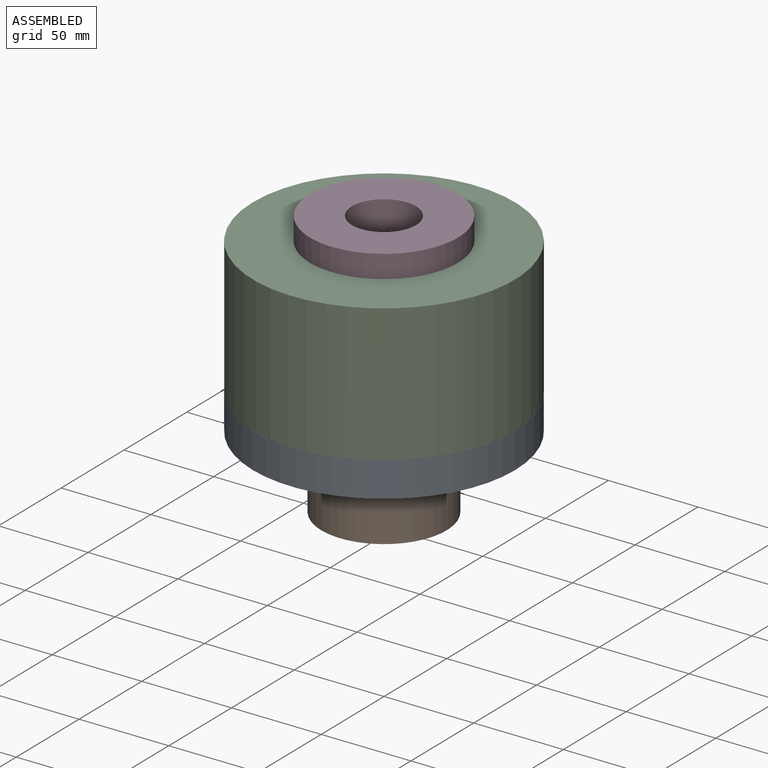
[diagram: assembled view]
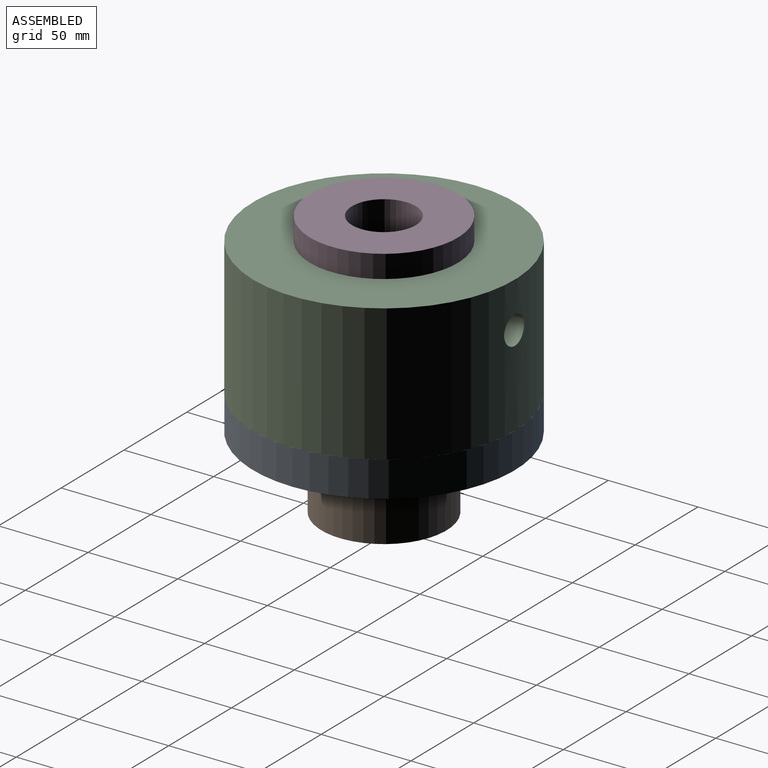
[diagram: assembled view, second angle]
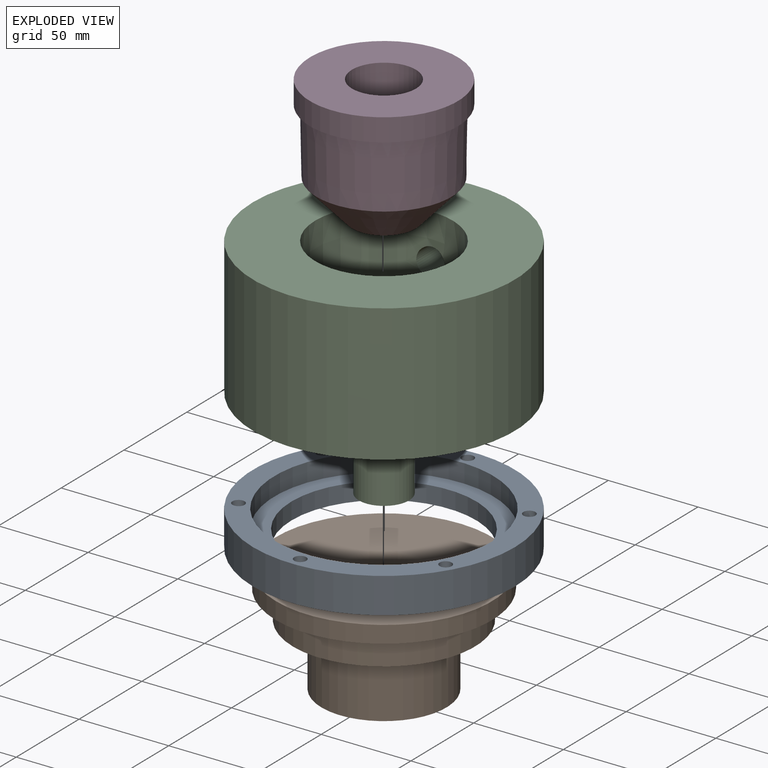
[diagram: exploded view]
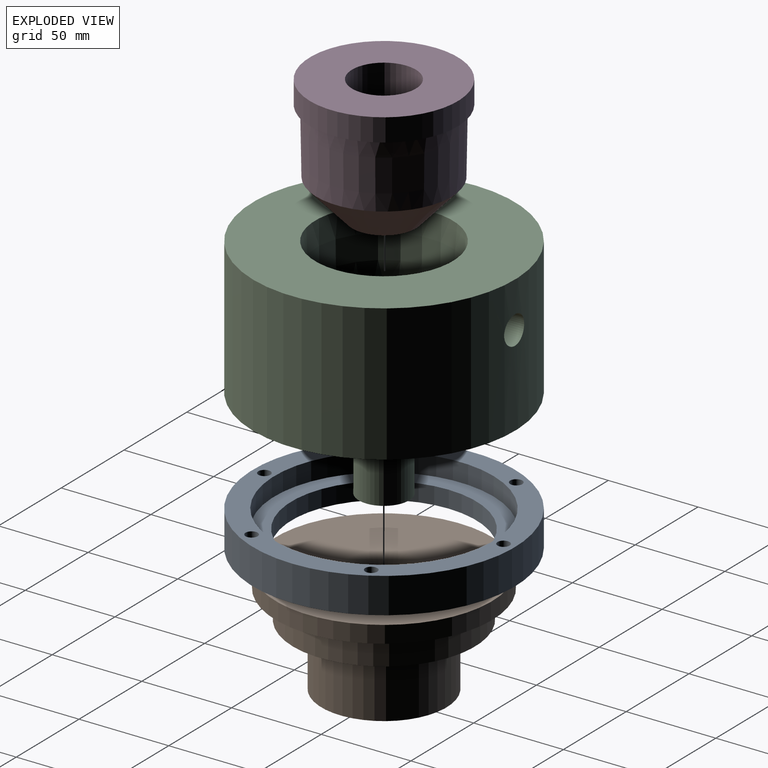
[diagram: exploded view, second angle]
ASSEMBLY  parts=4 mates=3
PART A: 24 faces, bbox 146.1x146.1x19.8 mm
  f0: plane 146.05x146.05mm, normal (0,0,1), area 4814.7mm2, adj f1,f5,f6,f9,f12,f15,f18,f21
  f1: cylinder r=61.09mm len=122.17mm, axis (0,0,1), area 3948.4mm2, adj f0,f2
  f2: plane 122.17x122.17mm, normal (0,0,1), area 3370.9mm2, adj f1,f3
  f3: cylinder r=51.56mm len=103.12mm, axis (0,0,1), area 3085.8mm2, adj f2,f4
  f4: plane 146.05x146.05mm, normal (0,0,-1), area 7818.7mm2, adj f3,f5,f8,f11,f14,f17,f20,f23
  f5: cylinder r=73.03mm len=146.05mm, axis (0,0,1), area 9090.3mm2, adj f0,f4
  f6: cylinder r=3.38mm len=13.46mm, axis (0,0,-1), area 285.7mm2, adj f0,f7
  f7: plane 11.11x11.11mm, normal (0,0,-1), area 61.1mm2, adj f6,f8
  f8: cylinder r=5.56mm len=11.11mm, axis (0,0,-1), area 221.7mm2, adj f4,f7
  f9: cylinder r=3.38mm len=13.46mm, axis (0,0,-1), area 285.7mm2, adj f0,f10
  f10: plane 11.11x11.11mm, normal (0,0,-1), area 61.1mm2, adj f9,f11
  f11: cylinder r=5.56mm len=11.11mm, axis (0,0,-1), area 221.7mm2, adj f4,f10
  f12: cylinder r=3.38mm len=13.46mm, axis (0,0,-1), area 285.7mm2, adj f0,f13
  f13: plane 11.11x11.11mm, normal (0,0,-1), area 61.1mm2, adj f12,f14
  f14: cylinder r=5.56mm len=11.11mm, axis (0,0,-1), area 221.7mm2, adj f4,f13
  f15: cylinder r=3.38mm len=13.46mm, axis (0,0,-1), area 285.7mm2, adj f0,f16
  f16: plane 11.11x11.11mm, normal (0,0,-1), area 61.1mm2, adj f15,f17
  f17: cylinder r=5.56mm len=11.11mm, axis (0,0,-1), area 221.7mm2, adj f4,f16
  f18: cylinder r=3.38mm len=13.46mm, axis (0,0,-1), area 285.7mm2, adj f0,f19
  f19: plane 11.11x11.11mm, normal (0,0,-1), area 61.1mm2, adj f18,f20
  f20: cylinder r=5.56mm len=11.11mm, axis (0,0,-1), area 221.7mm2, adj f4,f19
  f21: cylinder r=3.38mm len=13.46mm, axis (0,0,-1), area 285.7mm2, adj f0,f22
  f22: plane 11.11x11.11mm, normal (0,0,-1), area 61.1mm2, adj f21,f23
  f23: cylinder r=5.56mm len=11.11mm, axis (0,0,-1), area 221.7mm2, adj f4,f22
PART B: 27 faces, bbox 120.7x120.7x60.3 mm
  f0: cylinder r=14.1mm len=44.45mm, axis (0,0,-1), area 3938mm2, adj f1,f12
  f1: cone r=14.1mm half-angle=60deg, axis (0,0,-1), area 105mm2, adj f0,f26
  f2: cylinder r=16.68mm len=33.36mm, axis (0,0,-1), area 317.3mm2, adj f3,f26
  f3: plane 63.5x63.5mm, normal (0,0,-1), area 2170.1mm2, adj f2,f4,f14,f16,f18,f20,f22,f24
  f4: cylinder r=31.75mm len=63.5mm, axis (0,0,-1), area 633.4mm2, adj f3,f5
  f5: plane 69.85x69.85mm, normal (0,0,-1), area 665.1mm2, adj f4,f6
  f6: cylinder r=34.92mm len=69.85mm, axis (0,0,-1), area 6549.2mm2, adj f5,f13
  f7: plane 101.6x101.6mm, normal (0,0,-1), area 3079.5mm2, adj f8,f13
  f8: cylinder r=50.8mm len=101.6mm, axis (0,0,-1), area 5067.1mm2, adj f7,f9
  f9: plane 120.65x120.65mm, normal (0,0,-1), area 3325.3mm2, adj f8,f10
  f10: cylinder r=60.32mm len=120.65mm, axis (0,0,-1), area 3610.3mm2, adj f9,f11
  f11: plane 120.65x120.65mm, normal (0,0,1), area 10118.7mm2, adj f10,f12
  f12: torus R=20.45mm, axis (0,0,1), area 1028.3mm2, adj f0,f11
  f13: torus R=40mm, axis (0,0,-1), area 1843.6mm2, adj f6,f7
  f14: cylinder r=2.55mm len=16.51mm, axis (0,0,-1), area 264.8mm2, adj f3,f15
  f15: cone r=0mm half-angle=59deg, axis (0,0,-1), area 23.9mm2, adj f14
  f16: cylinder r=2.55mm len=16.51mm, axis (0,0,-1), area 264.8mm2, adj f3,f17
  f17: cone r=0mm half-angle=59deg, axis (0,0,-1), area 23.9mm2, adj f16
  f18: cylinder r=2.55mm len=16.51mm, axis (0,0,-1), area 264.8mm2, adj f3,f19
  f19: cone r=0mm half-angle=59deg, axis (0,0,-1), area 23.9mm2, adj f18
  f20: cylinder r=2.55mm len=16.51mm, axis (0,0,-1), area 264.8mm2, adj f3,f21
  f21: cone r=0mm half-angle=59deg, axis (0,0,-1), area 23.9mm2, adj f20
  f22: cylinder r=2.55mm len=16.51mm, axis (0,0,-1), area 264.8mm2, adj f3,f23
  f23: cone r=0mm half-angle=59deg, axis (0,0,-1), area 23.9mm2, adj f22
  f24: cylinder r=2.55mm len=16.51mm, axis (0,0,-1), area 264.8mm2, adj f3,f25
  f25: cone r=0mm half-angle=59deg, axis (0,0,-1), area 23.9mm2, adj f24
  f26: torus R=13.5mm, axis (0,0,-1), area 337mm2, adj f1,f2
PART C: 29 faces, bbox 146.1x146.1x127 mm
  f0: plane 146.05x146.05mm, normal (0,0,-1), area 15322.9mm2, adj f1,f12,f17,f19,f21,f23,f25,f27
  f1: cylinder r=73.03mm len=146.05mm, axis (0,0,-1), area 34764.9mm2, adj f0,f2,f16
  f2: plane 146.05x146.05mm, normal (0,0,1), area 12139.4mm2, adj f1,f3
  f3: cone r=37.56mm half-angle=1deg, axis (0,0,1), area 9543mm2, adj f2,f13,f16
  f4: cone r=9.53mm half-angle=45deg, axis (0,0,1), area 5102.4mm2, adj f13,f14
  f5: cylinder r=9.53mm len=41.82mm, axis (0,0,-1), area 2502.9mm2, adj f14,f15
  f6: cone r=9.53mm half-angle=25deg, axis (0,0,-1), area 706mm2, adj f7,f15
  f7: cylinder r=14.05mm len=44.45mm, axis (0,0,-1), area 3923.8mm2, adj f6,f8
  f8: torus R=14.05mm, axis (0,0,-1), area 102mm2, adj f7,f9
  f9: cylinder r=13.29mm len=26.58mm, axis (0,0,-1), area 132.5mm2, adj f8,f10
  f10: torus R=18.05mm, axis (0,0,-1), area 705.9mm2, adj f9,f11
  f11: plane 39.28x39.28mm, normal (0,0,-1), area 188mm2, adj f10,f12
  f12: torus R=19.64mm, axis (0,0,-1), area 151.3mm2, adj f0,f11
  f13: torus R=31.26mm, axis (0,0,-1), area 1132.5mm2, adj f3,f4
  f14: torus R=15.88mm, axis (0,0,1), area 318.3mm2, adj f4,f5
  f15: torus R=15.88mm, axis (0,0,1), area 169.3mm2, adj f5,f6
  f16: cylinder r=7.94mm len=35.99mm, axis (0,-1,0), area 1763mm2, adj f1,f3
  f17: cylinder r=2.55mm len=16.51mm, axis (0,0,-1), area 264.8mm2, adj f0,f18
  f18: cone r=0mm half-angle=59deg, axis (0,0,-1), area 23.9mm2, adj f17
  f19: cylinder r=2.55mm len=16.51mm, axis (0,0,-1), area 264.8mm2, adj f0,f20
  f20: cone r=0mm half-angle=59deg, axis (0,0,-1), area 23.9mm2, adj f19
  f21: cylinder r=2.55mm len=16.51mm, axis (0,0,-1), area 264.8mm2, adj f0,f22
  f22: cone r=0mm half-angle=59deg, axis (0,0,-1), area 23.9mm2, adj f21
  f23: cylinder r=2.55mm len=16.51mm, axis (0,0,-1), area 264.8mm2, adj f0,f24
  f24: cone r=0mm half-angle=59deg, axis (0,0,-1), area 23.9mm2, adj f23
  f25: cylinder r=2.55mm len=16.51mm, axis (0,0,-1), area 264.8mm2, adj f0,f26
  f26: cone r=0mm half-angle=59deg, axis (0,0,-1), area 23.9mm2, adj f25
  f27: cylinder r=2.55mm len=16.51mm, axis (0,0,-1), area 264.8mm2, adj f0,f28
  f28: cone r=0mm half-angle=59deg, axis (0,0,-1), area 23.9mm2, adj f27
PART D: 6 faces, bbox 82.6x82.6x70.5 mm
  f0: cylinder r=41.27mm len=82.55mm, axis (0,0,-1), area 3293.6mm2, adj f1,f5
  f1: plane 82.55x82.55mm, normal (0,0,1), area 4352mm2, adj f0,f2
  f2: cylinder r=17.84mm len=70.47mm, axis (0,0,-1), area 7900.1mm2, adj f1,f3
  f3: cone r=37.71mm half-angle=43deg, axis (0,0,1), area 5084.3mm2, adj f2,f4
  f4: cone r=38.35mm half-angle=1deg, axis (0,0,1), area 8714.1mm2, adj f3,f5
  f5: plane 82.55x82.55mm, normal (0,0,-1), area 732.4mm2, adj f0,f4
PLACE A t=(0,0,-57.15)mm
PLACE B rot(axis=(0,0,1),62.2deg) t=(0,0,-57.15)mm
PLACE C t=(0,0,-57.15)mm
PLACE D t=(0,0,-57.15)mm
MATE revolute B.f0 <-> C.f1  axis (0,0,1) through (0,0,0)mm
MATE fastened A.f1 <-> C.f1  axis (0,0,1) through (0,0,0)mm
MATE revolute D.f0 <-> C.f1  axis (0,0,-1) through (0,0,76.2)mm
